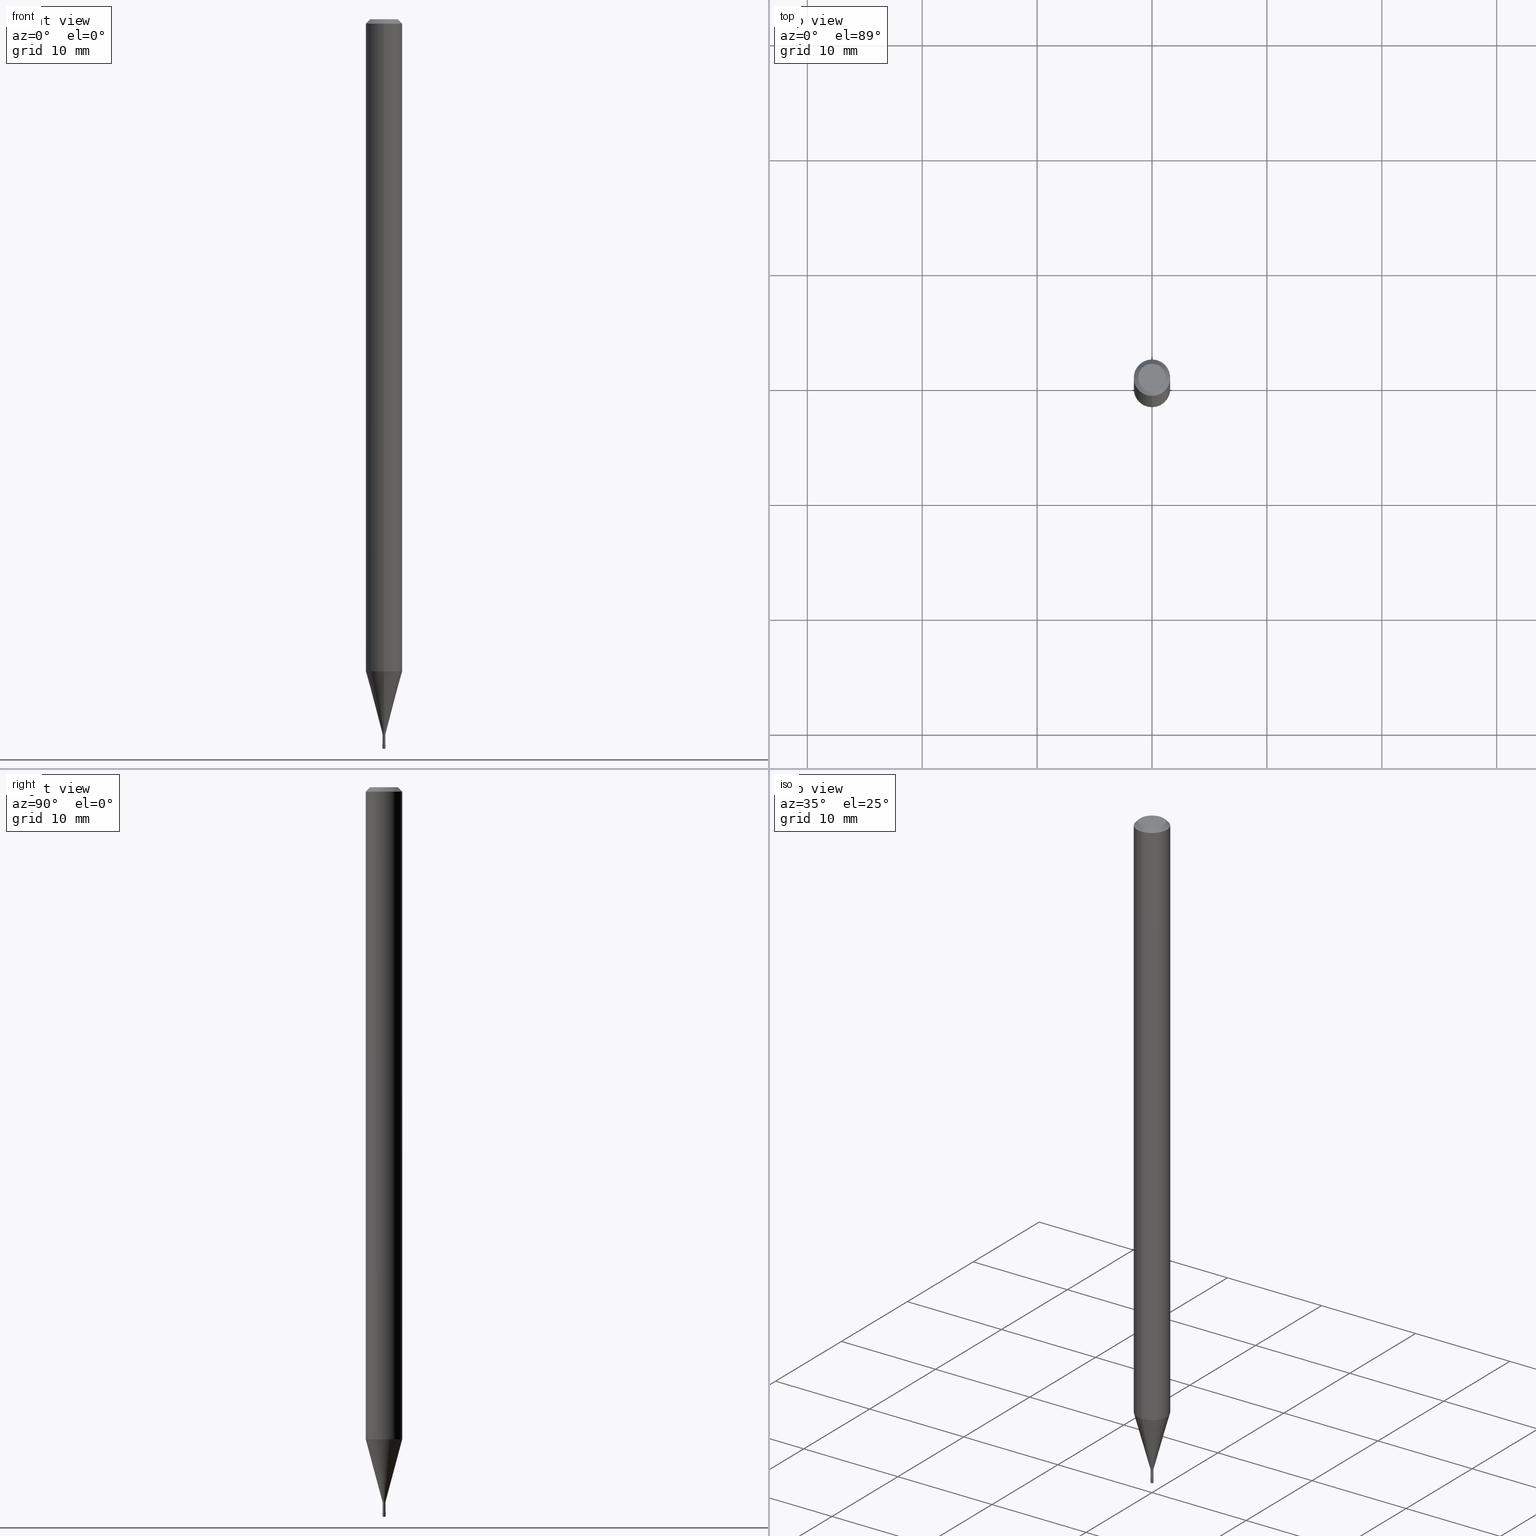
[diagram: canonical four-view strip — front | top / right | iso, engineering-drawing reading convention]
A machine part, canonical four-view strip (front | top / right | iso — engineering-drawing reading convention). The complete STEP part file that produces these views, byte-faithful:
ISO-10303-21;
HEADER;
FILE_DESCRIPTION (( 'STEP AP203' ),
    '1' );
FILE_NAME ('03535.STEP',
    '2024-03-08T21:42:18',
    ( '' ),
    ( '' ),
    'SwSTEP 2.0',
    'SolidWorks 2023',
    '' );
FILE_SCHEMA (( 'CONFIG_CONTROL_DESIGN' ));
ENDSEC;

DATA;
#1 = AXIS2_PLACEMENT_3D ( 'NONE', #134, #203, #47 ) ;
#2 = CC_DESIGN_SECURITY_CLASSIFICATION ( #383, ( #483 ) ) ;
#3 = DIRECTION ( 'NONE',  ( -2.446186856791931682E-29, 3.490453049505312812E-15, 1.000000000000000000 ) ) ;
#4 = EDGE_CURVE ( 'NONE', #160, #123, #472, .T. ) ;
#5 = DIRECTION ( 'NONE',  ( -6.982962677686265922E-15, -1.000000000000000000, 3.490453049505312812E-15 ) ) ;
#6 = AXIS2_PLACEMENT_3D ( 'NONE', #492, #411, #170 ) ;
#7 = AXIS2_PLACEMENT_3D ( 'NONE', #427, #432, #97 ) ;
#8 = DIRECTION ( 'NONE',  ( -6.982962677686265922E-15, -1.000000000000000000, 0.000000000000000000 ) ) ;
#9 = APPROVAL ( #177, 'UNSPECIFIED' ) ;
#10 = DIRECTION ( 'NONE',  ( -6.982962677686266711E-15, -1.000000000000000000, 3.490453049505312812E-15 ) ) ;
#11 = DIRECTION ( 'NONE',  ( -6.982962677686265922E-15, -1.000000000000000000, 0.000000000000000000 ) ) ;
#12 = EDGE_CURVE ( 'NONE', #277, #67, #331, .T. ) ;
#13 = DIRECTION ( 'NONE',  ( -2.445468806185136597E-29, 3.491481338843145583E-15, 1.000000000000000000 ) ) ;
#14 = DIRECTION ( 'NONE',  ( -2.445468806185136597E-29, 3.491481338843145583E-15, 1.000000000000000000 ) ) ;
#15 = AXIS2_PLACEMENT_3D ( 'NONE', #295, #132, #410 ) ;
#16 = ADVANCED_FACE ( 'NONE', ( #407 ), #45, .T. ) ;
#17 = LINE ( 'NONE', #175, #495 ) ;
#18 = EDGE_CURVE ( 'NONE', #314, #38, #199, .T. ) ;
#19 = DIRECTION ( 'NONE',  ( -1.000000000000000000, 6.982962677686265922E-15, -4.883557194083112901E-29 ) ) ;
#20 = DIRECTION ( 'NONE',  ( 2.446186856791931682E-29, -3.490453049505312812E-15, -1.000000000000000000 ) ) ;
#21 = ORIENTED_EDGE ( 'NONE', *, *, #462, .F. ) ;
#22 = APPROVAL_ROLE ( '' ) ;
#23 = PERSON_AND_ORGANIZATION ( #171, #200 ) ;
#24 = DIRECTION ( 'NONE',  ( -2.446186856791931682E-29, 3.490453049505312812E-15, 1.000000000000000000 ) ) ;
#25 = APPROVAL_DATE_TIME ( #337, #9 ) ;
#26 = EDGE_LOOP ( 'NONE', ( #231, #162, #356, #512 ) ) ;
#27 = ORIENTED_EDGE ( 'NONE', *, *, #48, .T. ) ;
#28 = CC_DESIGN_APPROVAL ( #9, ( #483 ) ) ;
#29 = LINE ( 'NONE', #441, #504 ) ;
#30 = ADVANCED_FACE ( 'NONE', ( #336 ), #286, .T. ) ;
#31 = ORIENTED_EDGE ( 'NONE', *, *, #78, .T. ) ;
#32 = ORIENTED_EDGE ( 'NONE', *, *, #409, .T. ) ;
#33 = DIRECTION ( 'NONE',  ( -6.982962677686265922E-15, -1.000000000000000000, 3.490453049505312812E-15 ) ) ;
#34 = CARTESIAN_POINT ( 'NONE',  ( 5.988491702082905110E-29, -8.544951938334478549E-15, -2.448092501787273001 ) ) ;
#35 = ORIENTED_EDGE ( 'NONE', *, *, #489, .T. ) ;
#36 = EDGE_CURVE ( 'NONE', #476, #275, #425, .T. ) ;
#37 = CARTESIAN_POINT ( 'NONE',  ( 0.004999999999999997502, -8.711245940413648329E-15, -2.484999999999999876 ) ) ;
#38 = VERTEX_POINT ( 'NONE', #136 ) ;
#39 = CIRCLE ( 'NONE', #147, 0.01500000000000002373 ) ;
#40 = EDGE_CURVE ( 'NONE', #275, #476, #173, .T. ) ;
#41 =( LENGTH_UNIT ( ) NAMED_UNIT ( * ) SI_UNIT ( $, .METRE. ) );
#42 = ORIENTED_EDGE ( 'NONE', *, *, #36, .T. ) ;
#43 = CC_DESIGN_PERSON_AND_ORGANIZATION_ASSIGNMENT ( #150, #220, ( #383 ) ) ;
#44 = AXIS2_PLACEMENT_3D ( 'NONE', #93, #249, #90 ) ;
#45 = CONICAL_SURFACE ( 'NONE', #316, 0.06250000000000000000, 0.7853981633974483900 ) ;
#46 = CIRCLE ( 'NONE', #169, 0.06250000000000000000 ) ;
#47 = DIRECTION ( 'NONE',  ( -6.982962677686265133E-15, -1.000000000000000000, 0.000000000000000000 ) ) ;
#48 = EDGE_CURVE ( 'NONE', #67, #277, #450, .T. ) ;
#49 = AXIS2_PLACEMENT_3D ( 'NONE', #54, #389, #430 ) ;
#50 = DIRECTION ( 'NONE',  ( -6.982962677686265133E-15, -1.000000000000000000, 0.000000000000000000 ) ) ;
#51 = CARTESIAN_POINT ( 'NONE',  ( -3.281992458512542573E-17, -0.004699999999999996715, 1.640512933267495924E-17 ) ) ;
#52 = CARTESIAN_POINT ( 'NONE',  ( 0.000000000000000000, 0.000000000000000000, 0.000000000000000000 ) ) ;
#53 = EDGE_CURVE ( 'NONE', #277, #123, #39, .T. ) ;
#54 = CARTESIAN_POINT ( 'NONE',  ( 0.000000000000000000, 0.000000000000000000, 0.000000000000000000 ) ) ;
#55 = CYLINDRICAL_SURFACE ( 'NONE', #516, 0.004999999999999997502 ) ;
#56 = AXIS2_PLACEMENT_3D ( 'NONE', #198, #84, #240 ) ;
#57 = PERSON_AND_ORGANIZATION ( #171, #200 ) ;
#58 = VERTEX_POINT ( 'NONE', #418 ) ;
#59 = DIRECTION ( 'NONE',  ( 1.000000000000000000, -6.982962677686266711E-15, 4.876176775795936914E-29 ) ) ;
#60 = DATE_AND_TIME ( #112, #327 ) ;
#61 = EDGE_LOOP ( 'NONE', ( #237, #114, #129, #358 ) ) ;
#62 = PERSON_AND_ORGANIZATION_ROLE ( 'design_owner' ) ;
#63 = EDGE_CURVE ( 'NONE', #479, #438, #86, .T. ) ;
#64 = CARTESIAN_POINT ( 'NONE',  ( 6.072671037490854444E-29, -8.661640674327993008E-15, -2.482015037688680259 ) ) ;
#65 = FACE_OUTER_BOUND ( 'NONE', #473, .T. ) ;
#66 = COORDINATED_UNIVERSAL_TIME_OFFSET ( 5, 0, .BEHIND. ) ;
#67 = VERTEX_POINT ( 'NONE', #415 ) ;
#68 = EDGE_CURVE ( 'NONE', #58, #346, #89, .T. ) ;
#69 = CARTESIAN_POINT ( 'NONE',  ( 3.669280285187904915E-31, -5.235679574257980361E-17, -0.01500000000000003067 ) ) ;
#70 = ORIENTED_EDGE ( 'NONE', *, *, #287, .F. ) ;
#71 = MECHANICAL_CONTEXT ( 'NONE', #419, 'mechanical' ) ;
#72 = ORIENTED_EDGE ( 'NONE', *, *, #63, .T. ) ;
#73 = AXIS2_PLACEMENT_3D ( 'NONE', #250, #140, #8 ) ;
#74 = DIRECTION ( 'NONE',  ( -2.445468806185136877E-29, 3.491481338843145188E-15, 1.000000000000000000 ) ) ;
#75 = ORIENTED_EDGE ( 'NONE', *, *, #63, .F. ) ;
#76 = CARTESIAN_POINT ( 'NONE',  ( 5.465484627074530748E-29, -7.798675489825575723E-15, -2.234287463322519152 ) ) ;
#77 = EDGE_LOOP ( 'NONE', ( #224, #520, #184, #221 ) ) ;
#78 = EDGE_CURVE ( 'NONE', #123, #346, #284, .T. ) ;
#79 = EDGE_CURVE ( 'NONE', #38, #314, #183, .T. ) ;
#80 = CARTESIAN_POINT ( 'NONE',  ( -4.364351673553370408E-16, -0.06250000000000781319, -2.234287463322518708 ) ) ;
#81 = ORIENTED_EDGE ( 'NONE', *, *, #79, .T. ) ;
#82 = CIRCLE ( 'NONE', #332, 0.004999999999999997502 ) ;
#83 = LINE ( 'NONE', #517, #413 ) ;
#84 = DIRECTION ( 'NONE',  ( -1.000000000000000000, 6.982962677686265922E-15, -4.883557194083112901E-29 ) ) ;
#85 = CARTESIAN_POINT ( 'NONE',  ( 5.999208542635941744E-29, -8.556755701253683600E-15, -2.451974787463810923 ) ) ;
#86 = CIRCLE ( 'NONE', #269, 0.004999999999999997502 ) ;
#87 = AXIS2_PLACEMENT_3D ( 'NONE', #460, #105, #108 ) ;
#88 = DIRECTION ( 'NONE',  ( -6.982962677686265922E-15, -1.000000000000000000, 3.483106191921935554E-15 ) ) ;
#89 = LINE ( 'NONE', #51, #374 ) ;
#90 = DIRECTION ( 'NONE',  ( -6.982962677686266711E-15, -1.000000000000000000, 3.490453049505313207E-15 ) ) ;
#91 = ADVANCED_FACE ( 'NONE', ( #246 ), #330, .F. ) ;
#92 = EDGE_CURVE ( 'NONE', #442, #188, #482, .T. ) ;
#93 = CARTESIAN_POINT ( 'NONE',  ( 7.084830981370712182E-46, -1.010931353649184660E-31, -2.896275467141607230E-17 ) ) ;
#94 = CIRCLE ( 'NONE', #391, 0.01500000000000000291 ) ;
#95 = APPROVAL_PERSON_ORGANIZATION ( #348, #161, #466 ) ;
#96 = CARTESIAN_POINT ( 'NONE',  ( 6.078774339127949202E-29, -8.673775828020701709E-15, -2.484999999999999876 ) ) ;
#97 = DIRECTION ( 'NONE',  ( -6.982962677686265922E-15, -1.000000000000000000, 0.000000000000000000 ) ) ;
#98 = DIRECTION ( 'NONE',  ( 2.446186856791931682E-29, -3.490453049505312812E-15, -1.000000000000000000 ) ) ;
#99 = DESIGN_CONTEXT ( 'detailed design', #212, 'design' ) ;
#100 = FACE_OUTER_BOUND ( 'NONE', #26, .T. ) ;
#101 = DATE_AND_TIME ( #458, #238 ) ;
#102 = CARTESIAN_POINT ( 'NONE',  ( -3.281992458506541684E-17, -0.004700000000008550637, -2.451974787463810923 ) ) ;
#103 = CARTESIAN_POINT ( 'NONE',  ( 6.076989983370064174E-29, -8.676331127025216680E-15, -2.484999999999999876 ) ) ;
#104 = AXIS2_PLACEMENT_3D ( 'NONE', #167, #131, #88 ) ;
#105 = DIRECTION ( 'NONE',  ( -2.446186856791931682E-29, 3.490453049505312812E-15, 1.000000000000000000 ) ) ;
#106 = AXIS2_PLACEMENT_3D ( 'NONE', #156, #405, #400 ) ;
#107 = DIRECTION ( 'NONE',  ( -4.851104656540964275E-15, -0.7071067811865500152, -0.7071067811865450192 ) ) ;
#108 = DIRECTION ( 'NONE',  ( -6.982962677686265922E-15, -1.000000000000000000, 0.000000000000000000 ) ) ;
#109 = COORDINATED_UNIVERSAL_TIME_OFFSET ( 5, 0, .BEHIND. ) ;
#110 = CC_DESIGN_DATE_AND_TIME_ASSIGNMENT ( #141, #420, ( #197 ) ) ;
#111 = FACE_OUTER_BOUND ( 'NONE', #178, .T. ) ;
#112 = CALENDAR_DATE ( 2024, 8, 3 ) ;
#113 = APPLICATION_PROTOCOL_DEFINITION ( 'international standard', 'config_control_design', 1994, #212 ) ;
#114 = ORIENTED_EDGE ( 'NONE', *, *, #4, .T. ) ;
#115 = ADVANCED_FACE ( 'NONE', ( #412 ), #259, .F. ) ;
#116 = DIRECTION ( 'NONE',  ( -2.445468806185136877E-29, 3.491481338843145188E-15, 1.000000000000000000 ) ) ;
#117 = CIRCLE ( 'NONE', #464, 0.004999999999999997502 ) ;
#118 = ORIENTED_EDGE ( 'NONE', *, *, #287, .T. ) ;
#119 = ORIENTED_EDGE ( 'NONE', *, *, #431, .T. ) ;
#120 = LOCAL_TIME ( 16, 42, 18.00000000000000000, #109 ) ;
#121 = AXIS2_PLACEMENT_3D ( 'NONE', #491, #457, #181 ) ;
#122 = CARTESIAN_POINT ( 'NONE',  ( 3.552713678806572767E-17, 0.004999999999991320415, -2.484999999999999876 ) ) ;
#123 = VERTEX_POINT ( 'NONE', #326 ) ;
#124 = CARTESIAN_POINT ( 'NONE',  ( 6.071472563553979635E-29, -8.663356957218496348E-15, -2.482015037688680259 ) ) ;
#125 = EDGE_LOOP ( 'NONE', ( #403, #191, #257, #390 ) ) ;
#126 = ORIENTED_EDGE ( 'NONE', *, *, #510, .F. ) ;
#127 = LOCAL_TIME ( 16, 42, 18.00000000000000000, #422 ) ;
#128 = APPLICATION_PROTOCOL_DEFINITION ( 'international standard', 'config_control_design', 1994, #419 ) ;
#129 = ORIENTED_EDGE ( 'NONE', *, *, #290, .F. ) ;
#130 = FACE_OUTER_BOUND ( 'NONE', #398, .T. ) ;
#131 = DIRECTION ( 'NONE',  ( -2.446186856791931682E-29, 3.490453049505312812E-15, 1.000000000000000000 ) ) ;
#132 = DIRECTION ( 'NONE',  ( -2.446186856791931682E-29, 3.490453049505312812E-15, 1.000000000000000000 ) ) ;
#133 = DIRECTION ( 'NONE',  ( -6.982962677686265922E-15, -1.000000000000000000, 3.490453049505312812E-15 ) ) ;
#134 = CARTESIAN_POINT ( 'NONE',  ( 6.078774339127949202E-29, -8.673775828020701709E-15, -2.484999999999999876 ) ) ;
#135 = CARTESIAN_POINT ( 'NONE',  ( -0.004999999999999997502, -8.666990100278535771E-15, -2.500000000000000000 ) ) ;
#136 = CARTESIAN_POINT ( 'NONE',  ( -4.364351673553912750E-16, -0.06250000000000005551, -0.01499999999999981209 ) ) ;
#137 = MANIFOLD_SOLID_BREP ( 'Body-Move/Copy2[2]', #304 ) ;
#138 = AXIS2_PLACEMENT_3D ( 'NONE', #310, #507, #263 ) ;
#139 = CIRCLE ( 'NONE', #87, 0.004699999999999992378 ) ;
#140 = DIRECTION ( 'NONE',  ( -2.446186856791931682E-29, 3.490453049505312812E-15, 1.000000000000000000 ) ) ;
#141 = DATE_AND_TIME ( #344, #127 ) ;
#142 = ADVANCED_FACE ( 'NONE', ( #130 ), #155, .F. ) ;
#143 = CYLINDRICAL_SURFACE ( 'NONE', #402, 0.004999999999999997502 ) ;
#144 = PLANE ( 'NONE',  #338 ) ;
#145 = COORDINATED_UNIVERSAL_TIME_OFFSET ( 5, 0, .BEHIND. ) ;
#146 = EDGE_LOOP ( 'NONE', ( #509, #70 ) ) ;
#147 = AXIS2_PLACEMENT_3D ( 'NONE', #289, #207, #329 ) ;
#148 = DIRECTION ( 'NONE',  ( -6.982962677686265922E-15, -1.000000000000000000, 3.490453049505312812E-15 ) ) ;
#149 = EDGE_CURVE ( 'NONE', #467, #302, #117, .T. ) ;
#150 = PERSON_AND_ORGANIZATION ( #171, #200 ) ;
#151 = CARTESIAN_POINT ( 'NONE',  ( 4.364351673553919652E-16, 0.06249999999999995143, -0.01500000000000024751 ) ) ;
#152 = ORIENTED_EDGE ( 'NONE', *, *, #270, .F. ) ;
#153 = CARTESIAN_POINT ( 'NONE',  ( 0.000000000000000000, 0.000000000000000000, 0.000000000000000000 ) ) ;
#154 = ORIENTED_EDGE ( 'NONE', *, *, #454, .T. ) ;
#155 = TOROIDAL_SURFACE ( 'NONE', #493, 0.01970000000000000223, 0.01500000000000000291 ) ;
#156 = CARTESIAN_POINT ( 'NONE',  ( 6.071472563553979635E-29, -8.663356957218496348E-15, -2.482015037688680259 ) ) ;
#157 = ORIENTED_EDGE ( 'NONE', *, *, #462, .T. ) ;
#158 = AXIS2_PLACEMENT_3D ( 'NONE', #64, #24, #297 ) ;
#159 = CARTESIAN_POINT ( 'NONE',  ( 0.004999999999999997502, -8.763618160496296592E-15, -2.500000000000000000 ) ) ;
#160 = VERTEX_POINT ( 'NONE', #478 ) ;
#161 = APPROVAL ( #307, 'UNSPECIFIED' ) ;
#162 = ORIENTED_EDGE ( 'NONE', *, *, #48, .F. ) ;
#163 =( NAMED_UNIT ( * ) PLANE_ANGLE_UNIT ( ) SI_UNIT ( $, .RADIAN. ) );
#164 = DIRECTION ( 'NONE',  ( -6.982962677686266711E-15, -1.000000000000000000, 3.490453049505312812E-15 ) ) ;
#165 = DIRECTION ( 'NONE',  ( -2.446186856791931682E-29, 3.490453049505312812E-15, 1.000000000000000000 ) ) ;
#166 = EDGE_CURVE ( 'NONE', #442, #314, #248, .T. ) ;
#167 = CARTESIAN_POINT ( 'NONE',  ( 3.669280285187904915E-31, -5.235679574257980361E-17, -0.01500000000000003067 ) ) ;
#168 = AXIS2_PLACEMENT_3D ( 'NONE', #85, #3, #164 ) ;
#169 = AXIS2_PLACEMENT_3D ( 'NONE', #365, #484, #363 ) ;
#170 = DIRECTION ( 'NONE',  ( -6.982962677686265922E-15, -1.000000000000000000, 3.483106191921935554E-15 ) ) ;
#171 = PERSON ( 'UNSPECIFIED', 'UNSPECIFIED', 'UNSPECIFIED', ('UNSPECIFIED'), ('UNSPECIFIED'), ('UNSPECIFIED') ) ;
#172 = LINE ( 'NONE', #499, #487 ) ;
#173 = CIRCLE ( 'NONE', #515, 0.004999999999999995767 ) ;
#174 = CYLINDRICAL_SURFACE ( 'NONE', #15, 0.004699999999999996715 ) ;
#175 = CARTESIAN_POINT ( 'NONE',  ( -4.364351673553916201E-16, -0.06250000000000000000, 2.181533155940820508E-16 ) ) ;
#176 = CARTESIAN_POINT ( 'NONE',  ( 6.113672015462842613E-29, -8.728703347107864943E-15, -2.500000000000000000 ) ) ;
#177 = APPROVAL_STATUS ( 'not_yet_approved' ) ;
#178 = EDGE_LOOP ( 'NONE', ( #359, #436, #81, #196 ) ) ;
#179 = COORDINATED_UNIVERSAL_TIME_OFFSET ( 5, 0, .BEHIND. ) ;
#180 = ADVANCED_FACE ( 'NONE', ( #276 ), #300, .T. ) ;
#181 = DIRECTION ( 'NONE',  ( -6.982962677686266711E-15, -1.000000000000000000, 3.490453049505313207E-15 ) ) ;
#182 = DATE_TIME_ROLE ( 'classification_date' ) ;
#183 = CIRCLE ( 'NONE', #104, 0.06250000000000000000 ) ;
#184 = ORIENTED_EDGE ( 'NONE', *, *, #166, .T. ) ;
#185 = ORIENTED_EDGE ( 'NONE', *, *, #256, .F. ) ;
#186 = CARTESIAN_POINT ( 'NONE',  ( 3.491481338849208940E-17, 0.004999999999991321283, -2.484999999999999876 ) ) ;
#187 = ORIENTED_EDGE ( 'NONE', *, *, #36, .F. ) ;
#188 = VERTEX_POINT ( 'NONE', #503 ) ;
#189 = DIRECTION ( 'NONE',  ( -2.446186856791931682E-29, 3.490453049505312812E-15, 1.000000000000000000 ) ) ;
#190 = ORIENTED_EDGE ( 'NONE', *, *, #256, .T. ) ;
#191 = ORIENTED_EDGE ( 'NONE', *, *, #281, .T. ) ;
#192 = PRODUCT_RELATED_PRODUCT_CATEGORY ( 'detail', '', ( #502 ) ) ;
#193 = AXIS2_PLACEMENT_3D ( 'NONE', #202, #455, #133 ) ;
#194 = ORIENTED_EDGE ( 'NONE', *, *, #510, .T. ) ;
#195 = CONICAL_SURFACE ( 'NONE', #451, 0.005211112605663977687, 0.2617993877991496854 ) ;
#196 = ORIENTED_EDGE ( 'NONE', *, *, #166, .F. ) ;
#197 = PRODUCT_DEFINITION ( 'UNKNOWN', '', #483, #99 ) ;
#198 = CARTESIAN_POINT ( 'NONE',  ( -1.375643647503587186E-16, -0.01970000000000866197, -2.482015037688680259 ) ) ;
#199 = CIRCLE ( 'NONE', #6, 0.06250000000000000000 ) ;
#200 = ORGANIZATION ( 'UNSPECIFIED', 'UNSPECIFIED', '' ) ;
#201 = ADVANCED_FACE ( 'NONE', ( #434 ), #428, .T. ) ;
#202 = CARTESIAN_POINT ( 'NONE',  ( 0.000000000000000000, 0.000000000000000000, 0.000000000000000000 ) ) ;
#203 = DIRECTION ( 'NONE',  ( -2.446186856791931682E-29, 3.490453049505312812E-15, 1.000000000000000000 ) ) ;
#204 = AXIS2_PLACEMENT_3D ( 'NONE', #69, #20, #272 ) ;
#205 = AXIS2_PLACEMENT_3D ( 'NONE', #378, #384, #334 ) ;
#206 = EDGE_CURVE ( 'NONE', #302, #438, #393, .T. ) ;
#207 = DIRECTION ( 'NONE',  ( 1.000000000000000000, -7.105427357601001070E-15, 4.926302915629620776E-29 ) ) ;
#208 = LINE ( 'NONE', #459, #474 ) ;
#209 = FACE_OUTER_BOUND ( 'NONE', #235, .T. ) ;
#210 = DIRECTION ( 'NONE',  ( -2.446186856791931682E-29, 3.490453049505312812E-15, 1.000000000000000000 ) ) ;
#211 = VECTOR ( 'NONE', #116, 39.37007874015748143 ) ;
#212 = APPLICATION_CONTEXT ( 'configuration controlled 3d designs of mechanical parts and assemblies' ) ;
#213 = UNCERTAINTY_MEASURE_WITH_UNIT (LENGTH_MEASURE( 1.000000000000000082E-05 ), #283, 'distance_accuracy_value', 'NONE');
#214 = DIRECTION ( 'NONE',  ( -2.445468806185136597E-29, 3.491481338843145583E-15, 1.000000000000000000 ) ) ;
#215 = EDGE_LOOP ( 'NONE', ( #35, #32, #323, #317 ) ) ;
#216 = ADVANCED_FACE ( 'NONE', ( #65 ), #144, .F. ) ;
#217 = PLANE ( 'NONE',  #205 ) ;
#218 = FACE_OUTER_BOUND ( 'NONE', #223, .T. ) ;
#219 = DIRECTION ( 'NONE',  ( -2.446186856791931682E-29, 3.490453049505312812E-15, 1.000000000000000000 ) ) ;
#220 = PERSON_AND_ORGANIZATION_ROLE ( 'classification_officer' ) ;
#221 = ORIENTED_EDGE ( 'NONE', *, *, #18, .T. ) ;
#222 = SHAPE_DEFINITION_REPRESENTATION ( #245, #294 ) ;
#223 = EDGE_LOOP ( 'NONE', ( #152, #274, #154, #42 ) ) ;
#224 = ORIENTED_EDGE ( 'NONE', *, *, #339, .F. ) ;
#225 = VECTOR ( 'NONE', #397, 39.37007874015748143 ) ;
#226 = CYLINDRICAL_SURFACE ( 'NONE', #325, 0.06250000000000000000 ) ;
#227 = CC_DESIGN_APPROVAL ( #161, ( #383 ) ) ;
#228 = APPROVAL_STATUS ( 'not_yet_approved' ) ;
#229 = EDGE_LOOP ( 'NONE', ( #324, #395, #31, #401 ) ) ;
#230 = DIRECTION ( 'NONE',  ( 1.000000000000000000, -7.105427357601001070E-15, 4.926302915629620776E-29 ) ) ;
#231 = ORIENTED_EDGE ( 'NONE', *, *, #53, .F. ) ;
#232 =( NAMED_UNIT ( * ) SI_UNIT ( $, .STERADIAN. ) SOLID_ANGLE_UNIT ( ) );
#233 = ORIENTED_EDGE ( 'NONE', *, *, #431, .F. ) ;
#234 = DIRECTION ( 'NONE',  ( -6.982962677686265922E-15, -1.000000000000000000, 4.370956789862821150E-15 ) ) ;
#235 = EDGE_LOOP ( 'NONE', ( #265, #118, #190, #233 ) ) ;
#236 = CONICAL_SURFACE ( 'NONE', #204, 0.06250000000000000000, 0.7853981633974483900 ) ;
#237 = ORIENTED_EDGE ( 'NONE', *, *, #461, .T. ) ;
#238 = LOCAL_TIME ( 16, 42, 18.00000000000000000, #179 ) ;
#239 = ADVANCED_FACE ( 'NONE', ( #111 ), #236, .T. ) ;
#240 = DIRECTION ( 'NONE',  ( -6.982962677686266711E-15, -1.000000000000000000, 0.000000000000000000 ) ) ;
#241 = ADVANCED_FACE ( 'NONE', ( #266 ), #226, .T. ) ;
#242 = CARTESIAN_POINT ( 'NONE',  ( 6.113672015462842613E-29, -8.728703347107864943E-15, -2.500000000000000000 ) ) ;
#243 = AXIS2_PLACEMENT_3D ( 'NONE', #76, #219, #234 ) ;
#244 = CIRCLE ( 'NONE', #375, 0.004999999999999997502 ) ;
#245 = PRODUCT_DEFINITION_SHAPE ( 'NONE', 'NONE',  #197 ) ;
#246 = FACE_OUTER_BOUND ( 'NONE', #308, .T. ) ;
#247 = CARTESIAN_POINT ( 'NONE',  ( 3.669280285187904915E-31, -5.235679574257980361E-17, -0.01500000000000003067 ) ) ;
#248 = LINE ( 'NONE', #151, #282 ) ;
#249 = DIRECTION ( 'NONE',  ( -2.446186856791931682E-29, 3.490453049505312812E-15, 1.000000000000000000 ) ) ;
#250 = CARTESIAN_POINT ( 'NONE',  ( 5.997988498279164254E-29, -8.558502874213200397E-15, -2.451974787463810923 ) ) ;
#251 = AXIS2_PLACEMENT_3D ( 'NONE', #124, #279, #447 ) ;
#252 = CC_DESIGN_PERSON_AND_ORGANIZATION_ASSIGNMENT ( #301, #261, ( #483 ) ) ;
#253 = LINE ( 'NONE', #309, #273 ) ;
#254 = DIRECTION ( 'NONE',  ( 1.000000000000000000, -6.982962677686266711E-15, 4.876176775795936914E-29 ) ) ;
#255 = DIRECTION ( 'NONE',  ( -2.446186856791931682E-29, 3.490453049505312812E-15, 1.000000000000000000 ) ) ;
#256 = EDGE_CURVE ( 'NONE', #467, #479, #29, .T. ) ;
#257 = ORIENTED_EDGE ( 'NONE', *, *, #320, .T. ) ;
#258 = FACE_OUTER_BOUND ( 'NONE', #280, .T. ) ;
#259 = TOROIDAL_SURFACE ( 'NONE', #168, 0.01969999999999999182, 0.01500000000000002373 ) ;
#260 = TOROIDAL_SURFACE ( 'NONE', #505, 0.01969999999999999182, 0.01500000000000002373 ) ;
#261 = PERSON_AND_ORGANIZATION_ROLE ( 'design_supplier' ) ;
#262 = CARTESIAN_POINT ( 'NONE',  ( 3.339550858072468540E-17, 0.004699999999999996715, -1.640512933267495924E-17 ) ) ;
#263 = DIRECTION ( 'NONE',  ( -1.000000000000000000, 6.982962677686265922E-15, -4.876176775795935793E-29 ) ) ;
#264 = APPROVAL_DATE_TIME ( #388, #161 ) ;
#265 = ORIENTED_EDGE ( 'NONE', *, *, #206, .F. ) ;
#266 = FACE_OUTER_BOUND ( 'NONE', #125, .T. ) ;
#267 = ORIENTED_EDGE ( 'NONE', *, *, #372, .F. ) ;
#268 = EDGE_LOOP ( 'NONE', ( #387, #446, #75, #185 ) ) ;
#269 = AXIS2_PLACEMENT_3D ( 'NONE', #380, #14, #376 ) ;
#270 = EDGE_CURVE ( 'NONE', #160, #275, #94, .T. ) ;
#271 = CIRCLE ( 'NONE', #243, 0.06250000000000000000 ) ;
#272 = DIRECTION ( 'NONE',  ( 6.982962677686265922E-15, 1.000000000000000000, -3.483106191921935554E-15 ) ) ;
#273 = VECTOR ( 'NONE', #343, 39.37007874015748143 ) ;
#274 = ORIENTED_EDGE ( 'NONE', *, *, #461, .F. ) ;
#275 = VERTEX_POINT ( 'NONE', #122 ) ;
#276 = FACE_OUTER_BOUND ( 'NONE', #146, .T. ) ;
#277 = VERTEX_POINT ( 'NONE', #500 ) ;
#278 = DIRECTION ( 'NONE',  ( -6.982962677686265922E-15, -1.000000000000000000, 0.000000000000000000 ) ) ;
#279 = DIRECTION ( 'NONE',  ( -2.446186856791931682E-29, 3.490453049505312812E-15, 1.000000000000000000 ) ) ;
#280 = EDGE_LOOP ( 'NONE', ( #27, #311, #463, #21 ) ) ;
#281 = EDGE_CURVE ( 'NONE', #429, #518, #271, .T. ) ;
#282 = VECTOR ( 'NONE', #357, 39.37007874015748143 ) ;
#283 =( CONVERSION_BASED_UNIT ( 'INCH', #480 ) LENGTH_UNIT ( ) NAMED_UNIT ( #416 ) );
#284 = CIRCLE ( 'NONE', #73, 0.004699999999999992378 ) ;
#285 = CIRCLE ( 'NONE', #56, 0.01500000000000000291 ) ;
#286 = CYLINDRICAL_SURFACE ( 'NONE', #193, 0.004699999999999996715 ) ;
#287 = EDGE_CURVE ( 'NONE', #302, #467, #244, .T. ) ;
#288 = CARTESIAN_POINT ( 'NONE',  ( 3.840629472727447874E-16, 0.04749999999999999362, -1.947592745229184365E-16 ) ) ;
#289 = CARTESIAN_POINT ( 'NONE',  ( 1.399769189447996566E-16, 0.01969999999999143617, -2.451974787463810923 ) ) ;
#290 = EDGE_CURVE ( 'NONE', #346, #123, #139, .T. ) ;
#291 = CLOSED_SHELL ( 'NONE', ( #377, #296, #404, #180 ) ) ;
#292 = CIRCLE ( 'NONE', #251, 0.004700000000000001052 ) ;
#293 = PERSON_AND_ORGANIZATION ( #171, #200 ) ;
#294 = ADVANCED_BREP_SHAPE_REPRESENTATION ( '03535', ( #315, #137, #49 ), #465 ) ;
#295 = CARTESIAN_POINT ( 'NONE',  ( 0.000000000000000000, 0.000000000000000000, 0.000000000000000000 ) ) ;
#296 = ADVANCED_FACE ( 'NONE', ( #386 ), #217, .T. ) ;
#297 = DIRECTION ( 'NONE',  ( -6.982962677686265922E-15, -1.000000000000000000, 3.490453049505312812E-15 ) ) ;
#298 = PERSON_AND_ORGANIZATION ( #171, #200 ) ;
#299 = DIRECTION ( 'NONE',  ( -2.446186856791931682E-29, 3.490453049505312812E-15, 1.000000000000000000 ) ) ;
#300 = PLANE ( 'NONE',  #138 ) ;
#301 = PERSON_AND_ORGANIZATION ( #171, #200 ) ;
#302 = VERTEX_POINT ( 'NONE', #135 ) ;
#303 = CARTESIAN_POINT ( 'NONE',  ( 4.440892098501175406E-16, 0.06249999999999995143, -0.01500000000000024751 ) ) ;
#304 = CLOSED_SHELL ( 'NONE', ( #115, #30, #142, #239, #201, #353, #485, #241, #16, #91, #216, #369, #440, #371 ) ) ;
#305 = CIRCLE ( 'NONE', #368, 0.01500000000000002373 ) ;
#306 = DIRECTION ( 'NONE',  ( -2.445468806185136597E-29, 3.491481338843145583E-15, 1.000000000000000000 ) ) ;
#307 = APPROVAL_STATUS ( 'not_yet_approved' ) ;
#308 = EDGE_LOOP ( 'NONE', ( #355, #319 ) ) ;
#309 = CARTESIAN_POINT ( 'NONE',  ( 3.702718207188414804E-17, 0.005211112605655433307, -2.448092501787273001 ) ) ;
#310 = CARTESIAN_POINT ( 'NONE',  ( 3.491481338849245302E-17, 0.004999999999991268373, -2.500000000000000000 ) ) ;
#311 = ORIENTED_EDGE ( 'NONE', *, *, #372, .T. ) ;
#312 = EDGE_LOOP ( 'NONE', ( #72, #119 ) ) ;
#313 = CARTESIAN_POINT ( 'NONE',  ( -0.004999999999999997502, 3.552713678800499154E-17, -2.459467545127451822E-31 ) ) ;
#314 = VERTEX_POINT ( 'NONE', #303 ) ;
#315 = MANIFOLD_SOLID_BREP ( 'Body-Move/Copy2[1]', #291 ) ;
#316 = AXIS2_PLACEMENT_3D ( 'NONE', #247, #98, #373 ) ;
#317 = ORIENTED_EDGE ( 'NONE', *, *, #320, .F. ) ;
#318 = FACE_OUTER_BOUND ( 'NONE', #443, .T. ) ;
#319 = ORIENTED_EDGE ( 'NONE', *, *, #360, .T. ) ;
#320 = EDGE_CURVE ( 'NONE', #518, #38, #17, .T. ) ;
#321 = CARTESIAN_POINT ( 'NONE',  ( -3.491481338837049389E-17, -0.005000000000008665915, -2.484999999999999876 ) ) ;
#322 = DIRECTION ( 'NONE',  ( 1.000000000000000000, -6.982962677686336130E-15, 0.000000000000000000 ) ) ;
#323 = ORIENTED_EDGE ( 'NONE', *, *, #79, .F. ) ;
#324 = ORIENTED_EDGE ( 'NONE', *, *, #12, .F. ) ;
#325 = AXIS2_PLACEMENT_3D ( 'NONE', #475, #189, #444 ) ;
#326 = CARTESIAN_POINT ( 'NONE',  ( 3.339550858078539687E-17, 0.004699999999991434987, -2.451974787463810923 ) ) ;
#327 = LOCAL_TIME ( 16, 42, 18.00000000000000000, #66 ) ;
#328 = DIRECTION ( 'NONE',  ( -1.807323732225326195E-15, -0.2588190451025176309, 0.9659258262890690894 ) ) ;
#329 = DIRECTION ( 'NONE',  ( 7.105427357600999492E-15, 1.000000000000000000, 0.000000000000000000 ) ) ;
#330 = PLANE ( 'NONE',  #382 ) ;
#331 = CIRCLE ( 'NONE', #439, 0.005211112605663977687 ) ;
#332 = AXIS2_PLACEMENT_3D ( 'NONE', #103, #13, #385 ) ;
#333 = CARTESIAN_POINT ( 'NONE',  ( 5.988491702082905110E-29, -8.544951938334478549E-15, -2.448092501787273001 ) ) ;
#334 = DIRECTION ( 'NONE',  ( 1.000000000000000000, -6.982962677686265922E-15, 4.876176775795935793E-29 ) ) ;
#335 = FACE_OUTER_BOUND ( 'NONE', #354, .T. ) ;
#336 = FACE_OUTER_BOUND ( 'NONE', #61, .T. ) ;
#337 = DATE_AND_TIME ( #435, #342 ) ;
#338 = AXIS2_PLACEMENT_3D ( 'NONE', #186, #469, #148 ) ;
#339 = EDGE_CURVE ( 'NONE', #188, #38, #208, .T. ) ;
#340 = DIRECTION ( 'NONE',  ( 6.982962677686265922E-15, 1.000000000000000000, -3.490453049505312812E-15 ) ) ;
#341 = TOROIDAL_SURFACE ( 'NONE', #158, 0.01970000000000000223, 0.01500000000000000291 ) ;
#342 = LOCAL_TIME ( 16, 42, 18.00000000000000000, #145 ) ;
#343 = DIRECTION ( 'NONE',  ( 1.839019923739596371E-15, 0.2588190451025244032, 0.9659258262890673130 ) ) ;
#344 = CALENDAR_DATE ( 2024, 8, 3 ) ;
#345 = DIRECTION ( 'NONE',  ( 1.000000000000000000, -6.982962677686336130E-15, 0.000000000000000000 ) ) ;
#346 = VERTEX_POINT ( 'NONE', #102 ) ;
#347 = CARTESIAN_POINT ( 'NONE',  ( 4.440892098501171462E-16, 0.06249999999999218681, -2.234287463322519596 ) ) ;
#348 = PERSON_AND_ORGANIZATION ( #171, #200 ) ;
#349 = APPROVAL_ROLE ( '' ) ;
#350 = APPROVAL_PERSON_ORGANIZATION ( #298, #361, #349 ) ;
#351 = FACE_OUTER_BOUND ( 'NONE', #268, .T. ) ;
#352 = SECURITY_CLASSIFICATION_LEVEL ( 'unclassified' ) ;
#353 = ADVANCED_FACE ( 'NONE', ( #258 ), #392, .T. ) ;
#354 = EDGE_LOOP ( 'NONE', ( #514, #194, #449, #508 ) ) ;
#355 = ORIENTED_EDGE ( 'NONE', *, *, #92, .T. ) ;
#356 = ORIENTED_EDGE ( 'NONE', *, *, #399, .T. ) ;
#357 = DIRECTION ( 'NONE',  ( 4.937700262164548042E-15, 0.7071067811865451302, -0.7071067811865499042 ) ) ;
#358 = ORIENTED_EDGE ( 'NONE', *, *, #68, .F. ) ;
#359 = ORIENTED_EDGE ( 'NONE', *, *, #360, .F. ) ;
#360 = EDGE_CURVE ( 'NONE', #188, #442, #406, .T. ) ;
#361 = APPROVAL ( #228, 'UNSPECIFIED' ) ;
#362 = CIRCLE ( 'NONE', #106, 0.004700000000000001052 ) ;
#363 = DIRECTION ( 'NONE',  ( -6.982962677686265922E-15, -1.000000000000000000, 4.370956789862821150E-15 ) ) ;
#364 = ORIENTED_EDGE ( 'NONE', *, *, #12, .T. ) ;
#365 = CARTESIAN_POINT ( 'NONE',  ( 5.465484627074530748E-29, -7.798675489825575723E-15, -2.234287463322519152 ) ) ;
#366 = ORIENTED_EDGE ( 'NONE', *, *, #281, .F. ) ;
#367 = CARTESIAN_POINT ( 'NONE',  ( 5.988491702082905110E-29, -8.544951938334478549E-15, -2.448092501787273001 ) ) ;
#368 = AXIS2_PLACEMENT_3D ( 'NONE', #414, #19, #50 ) ;
#369 = ADVANCED_FACE ( 'NONE', ( #218 ), #341, .F. ) ;
#370 = DIRECTION ( 'NONE',  ( -2.446186856791931682E-29, 3.490453049505312812E-15, 1.000000000000000000 ) ) ;
#371 = ADVANCED_FACE ( 'NONE', ( #100 ), #260, .F. ) ;
#372 = EDGE_CURVE ( 'NONE', #277, #429, #253, .T. ) ;
#373 = DIRECTION ( 'NONE',  ( 6.982962677686265922E-15, 1.000000000000000000, -3.483106191921935554E-15 ) ) ;
#374 = VECTOR ( 'NONE', #255, 39.37007874015748143 ) ;
#375 = AXIS2_PLACEMENT_3D ( 'NONE', #176, #306, #345 ) ;
#376 = DIRECTION ( 'NONE',  ( 1.000000000000000000, -6.982962677686336130E-15, 0.000000000000000000 ) ) ;
#377 = ADVANCED_FACE ( 'NONE', ( #351 ), #55, .T. ) ;
#378 = CARTESIAN_POINT ( 'NONE',  ( 6.076989983370064174E-29, -8.676331127025216680E-15, -2.484999999999999876 ) ) ;
#379 = CARTESIAN_POINT ( 'NONE',  ( 0.000000000000000000, 0.000000000000000000, 0.000000000000000000 ) ) ;
#380 = CARTESIAN_POINT ( 'NONE',  ( 6.076989983370064174E-29, -8.676331127025216680E-15, -2.484999999999999876 ) ) ;
#381 = PERSON_AND_ORGANIZATION_ROLE ( 'creator' ) ;
#382 = AXIS2_PLACEMENT_3D ( 'NONE', #488, #497, #340 ) ;
#383 = SECURITY_CLASSIFICATION ( '', '', #352 ) ;
#384 = DIRECTION ( 'NONE',  ( -2.438088387897960049E-29, 3.491481338843145188E-15, 1.000000000000000000 ) ) ;
#385 = DIRECTION ( 'NONE',  ( 1.000000000000000000, -6.982962677686336130E-15, 0.000000000000000000 ) ) ;
#386 = FACE_OUTER_BOUND ( 'NONE', #312, .T. ) ;
#387 = ORIENTED_EDGE ( 'NONE', *, *, #149, .T. ) ;
#388 = DATE_AND_TIME ( #494, #120 ) ;
#389 = DIRECTION ( 'NONE',  ( 0.000000000000000000, 0.000000000000000000, 1.000000000000000000 ) ) ;
#390 = ORIENTED_EDGE ( 'NONE', *, *, #18, .F. ) ;
#391 = AXIS2_PLACEMENT_3D ( 'NONE', #513, #230, #396 ) ;
#392 = CONICAL_SURFACE ( 'NONE', #7, 0.005211112605663977687, 0.2617993877991496854 ) ;
#393 = LINE ( 'NONE', #313, #211 ) ;
#394 = ORIENTED_EDGE ( 'NONE', *, *, #40, .F. ) ;
#395 = ORIENTED_EDGE ( 'NONE', *, *, #53, .T. ) ;
#396 = DIRECTION ( 'NONE',  ( 7.105427357601001859E-15, 1.000000000000000000, 0.000000000000000000 ) ) ;
#397 = DIRECTION ( 'NONE',  ( -2.446186856791931682E-29, 3.490453049505312812E-15, 1.000000000000000000 ) ) ;
#398 = EDGE_LOOP ( 'NONE', ( #126, #481, #471, #511 ) ) ;
#399 = EDGE_CURVE ( 'NONE', #67, #346, #305, .T. ) ;
#400 = DIRECTION ( 'NONE',  ( -6.982962677686265922E-15, -1.000000000000000000, 0.000000000000000000 ) ) ;
#401 = ORIENTED_EDGE ( 'NONE', *, *, #399, .F. ) ;
#402 = AXIS2_PLACEMENT_3D ( 'NONE', #379, #496, #59 ) ;
#403 = ORIENTED_EDGE ( 'NONE', *, *, #409, .F. ) ;
#404 = ADVANCED_FACE ( 'NONE', ( #209 ), #143, .T. ) ;
#405 = DIRECTION ( 'NONE',  ( -2.446186856791931682E-29, 3.490453049505312812E-15, 1.000000000000000000 ) ) ;
#406 = CIRCLE ( 'NONE', #121, 0.04749999999999999362 ) ;
#407 = FACE_OUTER_BOUND ( 'NONE', #77, .T. ) ;
#408 = CARTESIAN_POINT ( 'NONE',  ( 6.072671037490854444E-29, -8.661640674327993008E-15, -2.482015037688680259 ) ) ;
#409 = EDGE_CURVE ( 'NONE', #429, #314, #172, .T. ) ;
#410 = DIRECTION ( 'NONE',  ( -6.982962677686265922E-15, -1.000000000000000000, 3.490453049505312812E-15 ) ) ;
#411 = DIRECTION ( 'NONE',  ( -2.446186856791931682E-29, 3.490453049505312812E-15, 1.000000000000000000 ) ) ;
#412 = FACE_OUTER_BOUND ( 'NONE', #229, .T. ) ;
#413 = VECTOR ( 'NONE', #328, 39.37007874015748854 ) ;
#414 = CARTESIAN_POINT ( 'NONE',  ( -1.375643647503593842E-16, -0.01970000000000855095, -2.451974787463810923 ) ) ;
#415 = CARTESIAN_POINT ( 'NONE',  ( -3.638900483451209847E-17, -0.005211112605672522068, -2.448092501787273001 ) ) ;
#416 = DIMENSIONAL_EXPONENTS ( 1.000000000000000000, 0.000000000000000000, 0.000000000000000000, 0.000000000000000000, 0.000000000000000000, 0.000000000000000000, 0.000000000000000000 ) ;
#417 = CARTESIAN_POINT ( 'NONE',  ( -0.004999999999999997502, -8.666990100278535771E-15, -2.484999999999999876 ) ) ;
#418 = CARTESIAN_POINT ( 'NONE',  ( -3.281992458506474507E-17, -0.004700000000008664261, -2.482015037688680259 ) ) ;
#419 = APPLICATION_CONTEXT ( 'configuration controlled 3d designs of mechanical parts and assemblies' ) ;
#420 = DATE_TIME_ROLE ( 'creation_date' ) ;
#421 = DIRECTION ( 'NONE',  ( -2.446186856791931682E-29, 3.490453049505312812E-15, 1.000000000000000000 ) ) ;
#422 = COORDINATED_UNIVERSAL_TIME_OFFSET ( 5, 0, .BEHIND. ) ;
#423 = DIRECTION ( 'NONE',  ( -2.446186856791931682E-29, 3.490453049505312812E-15, 1.000000000000000000 ) ) ;
#424 = APPROVAL_DATE_TIME ( #101, #361 ) ;
#425 = CIRCLE ( 'NONE', #1, 0.004999999999999995767 ) ;
#426 = APPROVAL_PERSON_ORGANIZATION ( #57, #9, #22 ) ;
#427 = CARTESIAN_POINT ( 'NONE',  ( 5.988491702082905110E-29, -8.544951938334478549E-15, -2.448092501787273001 ) ) ;
#428 = CYLINDRICAL_SURFACE ( 'NONE', #453, 0.06250000000000000000 ) ;
#429 = VERTEX_POINT ( 'NONE', #347 ) ;
#430 = DIRECTION ( 'NONE',  ( 1.000000000000000000, 0.000000000000000000, 0.000000000000000000 ) ) ;
#431 = EDGE_CURVE ( 'NONE', #438, #479, #82, .T. ) ;
#432 = DIRECTION ( 'NONE',  ( -2.446186856791931682E-29, 3.490453049505312812E-15, 1.000000000000000000 ) ) ;
#433 = CC_DESIGN_PERSON_AND_ORGANIZATION_ASSIGNMENT ( #23, #501, ( #197 ) ) ;
#434 = FACE_OUTER_BOUND ( 'NONE', #215, .T. ) ;
#435 = CALENDAR_DATE ( 2024, 8, 3 ) ;
#436 = ORIENTED_EDGE ( 'NONE', *, *, #339, .T. ) ;
#437 = DIRECTION ( 'NONE',  ( -2.446186856791931682E-29, 3.490453049505312812E-15, 1.000000000000000000 ) ) ;
#438 = VERTEX_POINT ( 'NONE', #417 ) ;
#439 = AXIS2_PLACEMENT_3D ( 'NONE', #34, #423, #278 ) ;
#440 = ADVANCED_FACE ( 'NONE', ( #335 ), #174, .T. ) ;
#441 = CARTESIAN_POINT ( 'NONE',  ( 0.004999999999999997502, -3.491481338843131630E-17, 2.438088387897967108E-31 ) ) ;
#442 = VERTEX_POINT ( 'NONE', #288 ) ;
#443 = EDGE_LOOP ( 'NONE', ( #267, #364, #157, #366 ) ) ;
#444 = DIRECTION ( 'NONE',  ( -6.982962677686265922E-15, -1.000000000000000000, 3.490453049505312812E-15 ) ) ;
#445 = DIRECTION ( 'NONE',  ( -6.982962677686265922E-15, -1.000000000000000000, 0.000000000000000000 ) ) ;
#446 = ORIENTED_EDGE ( 'NONE', *, *, #206, .T. ) ;
#447 = DIRECTION ( 'NONE',  ( -6.982962677686265922E-15, -1.000000000000000000, 0.000000000000000000 ) ) ;
#448 = DIRECTION ( 'NONE',  ( -2.445468806185136597E-29, 3.491481338843145583E-15, 1.000000000000000000 ) ) ;
#449 = ORIENTED_EDGE ( 'NONE', *, *, #68, .T. ) ;
#450 = CIRCLE ( 'NONE', #486, 0.005211112605663977687 ) ;
#451 = AXIS2_PLACEMENT_3D ( 'NONE', #367, #477, #445 ) ;
#452 = CC_DESIGN_PERSON_AND_ORGANIZATION_ASSIGNMENT ( #293, #381, ( #483 ) ) ;
#453 = AXIS2_PLACEMENT_3D ( 'NONE', #153, #437, #33 ) ;
#454 = EDGE_CURVE ( 'NONE', #58, #476, #285, .T. ) ;
#455 = DIRECTION ( 'NONE',  ( -2.446186856791931682E-29, 3.490453049505312812E-15, 1.000000000000000000 ) ) ;
#456 = CC_DESIGN_APPROVAL ( #361, ( #197 ) ) ;
#457 = DIRECTION ( 'NONE',  ( -2.446186856791931682E-29, 3.490453049505312812E-15, 1.000000000000000000 ) ) ;
#458 = CALENDAR_DATE ( 2024, 8, 3 ) ;
#459 = CARTESIAN_POINT ( 'NONE',  ( -4.287811248607203282E-16, -0.06250000000000005551, -0.01499999999999981209 ) ) ;
#460 = CARTESIAN_POINT ( 'NONE',  ( 5.997988498279164254E-29, -8.558502874213200397E-15, -2.451974787463810923 ) ) ;
#461 = EDGE_CURVE ( 'NONE', #58, #160, #362, .T. ) ;
#462 = EDGE_CURVE ( 'NONE', #67, #518, #83, .T. ) ;
#463 = ORIENTED_EDGE ( 'NONE', *, *, #489, .F. ) ;
#464 = AXIS2_PLACEMENT_3D ( 'NONE', #242, #448, #322 ) ;
#465 =( GEOMETRIC_REPRESENTATION_CONTEXT ( 3 ) GLOBAL_UNCERTAINTY_ASSIGNED_CONTEXT ( ( #213 ) ) GLOBAL_UNIT_ASSIGNED_CONTEXT ( ( #283, #163, #232 ) ) REPRESENTATION_CONTEXT ( 'NONE', 'WORKASPACE' ) );
#466 = APPROVAL_ROLE ( '' ) ;
#467 = VERTEX_POINT ( 'NONE', #159 ) ;
#468 = CC_DESIGN_DATE_AND_TIME_ASSIGNMENT ( #60, #182, ( #383 ) ) ;
#469 = DIRECTION ( 'NONE',  ( -2.446186856791931122E-29, 3.490453049505312812E-15, 1.000000000000000000 ) ) ;
#470 = PERSON_AND_ORGANIZATION ( #171, #200 ) ;
#471 = ORIENTED_EDGE ( 'NONE', *, *, #40, .T. ) ;
#472 = LINE ( 'NONE', #262, #225 ) ;
#473 = EDGE_LOOP ( 'NONE', ( #187, #394 ) ) ;
#474 = VECTOR ( 'NONE', #107, 39.37007874015748143 ) ;
#475 = CARTESIAN_POINT ( 'NONE',  ( 0.000000000000000000, 0.000000000000000000, 0.000000000000000000 ) ) ;
#476 = VERTEX_POINT ( 'NONE', #321 ) ;
#477 = DIRECTION ( 'NONE',  ( -2.446186856791931682E-29, 3.490453049505312812E-15, 1.000000000000000000 ) ) ;
#478 = CARTESIAN_POINT ( 'NONE',  ( 3.446132268442557768E-17, 0.004699999999991337843, -2.482015037688680259 ) ) ;
#479 = VERTEX_POINT ( 'NONE', #37 ) ;
#480 = LENGTH_MEASURE_WITH_UNIT ( LENGTH_MEASURE( 0.02539999999999999897 ), #41 );
#481 = ORIENTED_EDGE ( 'NONE', *, *, #270, .T. ) ;
#482 = CIRCLE ( 'NONE', #44, 0.04749999999999999362 ) ;
#483 = PRODUCT_DEFINITION_FORMATION_WITH_SPECIFIED_SOURCE ( 'ANY', '', #502, .NOT_KNOWN. ) ;
#484 = DIRECTION ( 'NONE',  ( -2.446186856791931682E-29, 3.490453049505312812E-15, 1.000000000000000000 ) ) ;
#485 = ADVANCED_FACE ( 'NONE', ( #318 ), #195, .T. ) ;
#486 = AXIS2_PLACEMENT_3D ( 'NONE', #333, #370, #11 ) ;
#487 = VECTOR ( 'NONE', #299, 39.37007874015748143 ) ;
#488 = CARTESIAN_POINT ( 'NONE',  ( 3.316907271900976096E-16, 0.04749999999999999362, -1.802778971872103665E-16 ) ) ;
#489 = EDGE_CURVE ( 'NONE', #518, #429, #46, .T. ) ;
#490 = DIRECTION ( 'NONE',  ( -6.982962677686265133E-15, -1.000000000000000000, 0.000000000000000000 ) ) ;
#491 = CARTESIAN_POINT ( 'NONE',  ( 7.084830981370712182E-46, -1.010931353649184660E-31, -2.896275467141607230E-17 ) ) ;
#492 = CARTESIAN_POINT ( 'NONE',  ( 3.669280285187904915E-31, -5.235679574257980361E-17, -0.01500000000000003067 ) ) ;
#493 = AXIS2_PLACEMENT_3D ( 'NONE', #408, #165, #5 ) ;
#494 = CALENDAR_DATE ( 2024, 8, 3 ) ;
#495 = VECTOR ( 'NONE', #498, 39.37007874015748143 ) ;
#496 = DIRECTION ( 'NONE',  ( -2.445468806185136597E-29, 3.491481338843145583E-15, 1.000000000000000000 ) ) ;
#497 = DIRECTION ( 'NONE',  ( 2.446186856791931122E-29, -3.490453049505312812E-15, -1.000000000000000000 ) ) ;
#498 = DIRECTION ( 'NONE',  ( -2.446186856791931682E-29, 3.490453049505312812E-15, 1.000000000000000000 ) ) ;
#499 = CARTESIAN_POINT ( 'NONE',  ( 4.440892098500625669E-16, 0.06250000000000000000, -2.181533155940820508E-16 ) ) ;
#500 = CARTESIAN_POINT ( 'NONE',  ( 2.405581959610008443E-16, 0.005211112605655433307, -2.448092501787273001 ) ) ;
#501 = PERSON_AND_ORGANIZATION_ROLE ( 'creator' ) ;
#502 = PRODUCT ( '03535', '03535', '', ( #71 ) ) ;
#503 = CARTESIAN_POINT ( 'NONE',  ( -3.773273898774340269E-16, -0.04749999999999999362, 1.368337651800862550E-16 ) ) ;
#504 = VECTOR ( 'NONE', #74, 39.37007874015748143 ) ;
#505 = AXIS2_PLACEMENT_3D ( 'NONE', #506, #421, #10 ) ;
#506 = CARTESIAN_POINT ( 'NONE',  ( 5.999208542635941744E-29, -8.556755701253683600E-15, -2.451974787463810923 ) ) ;
#507 = DIRECTION ( 'NONE',  ( 2.438088387897960049E-29, -3.491481338843145188E-15, -1.000000000000000000 ) ) ;
#508 = ORIENTED_EDGE ( 'NONE', *, *, #78, .F. ) ;
#509 = ORIENTED_EDGE ( 'NONE', *, *, #149, .F. ) ;
#510 = EDGE_CURVE ( 'NONE', #160, #58, #292, .T. ) ;
#511 = ORIENTED_EDGE ( 'NONE', *, *, #454, .F. ) ;
#512 = ORIENTED_EDGE ( 'NONE', *, *, #290, .T. ) ;
#513 = CARTESIAN_POINT ( 'NONE',  ( 1.399769189448004455E-16, 0.01969999999999134249, -2.482015037688680259 ) ) ;
#514 = ORIENTED_EDGE ( 'NONE', *, *, #4, .F. ) ;
#515 = AXIS2_PLACEMENT_3D ( 'NONE', #96, #210, #490 ) ;
#516 = AXIS2_PLACEMENT_3D ( 'NONE', #52, #214, #254 ) ;
#517 = CARTESIAN_POINT ( 'NONE',  ( -3.638900483451209847E-17, -0.005211112605672522068, -2.448092501787273001 ) ) ;
#518 = VERTEX_POINT ( 'NONE', #80 ) ;
#519 = CC_DESIGN_PERSON_AND_ORGANIZATION_ASSIGNMENT ( #470, #62, ( #502 ) ) ;
#520 = ORIENTED_EDGE ( 'NONE', *, *, #92, .F. ) ;
ENDSEC;
END-ISO-10303-21;
